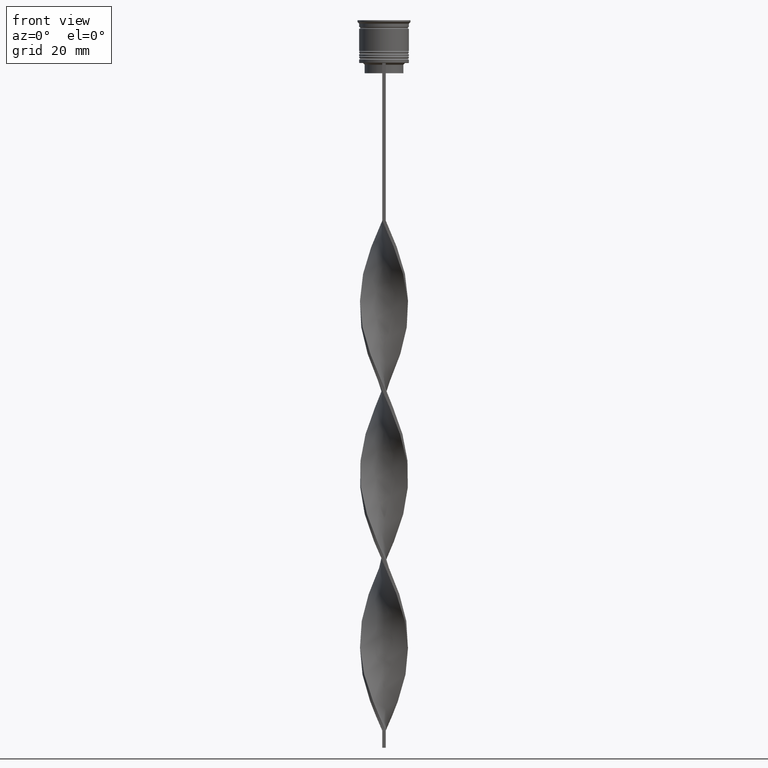
[diagram: clean part render]
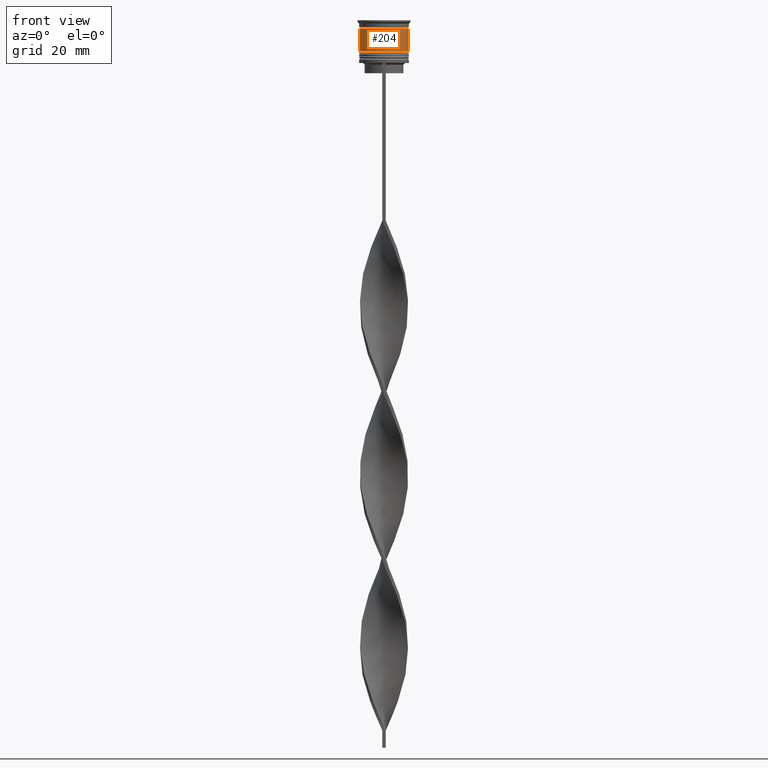
[diagram: same view with one face highlighted and labeled with its STEP entity id]
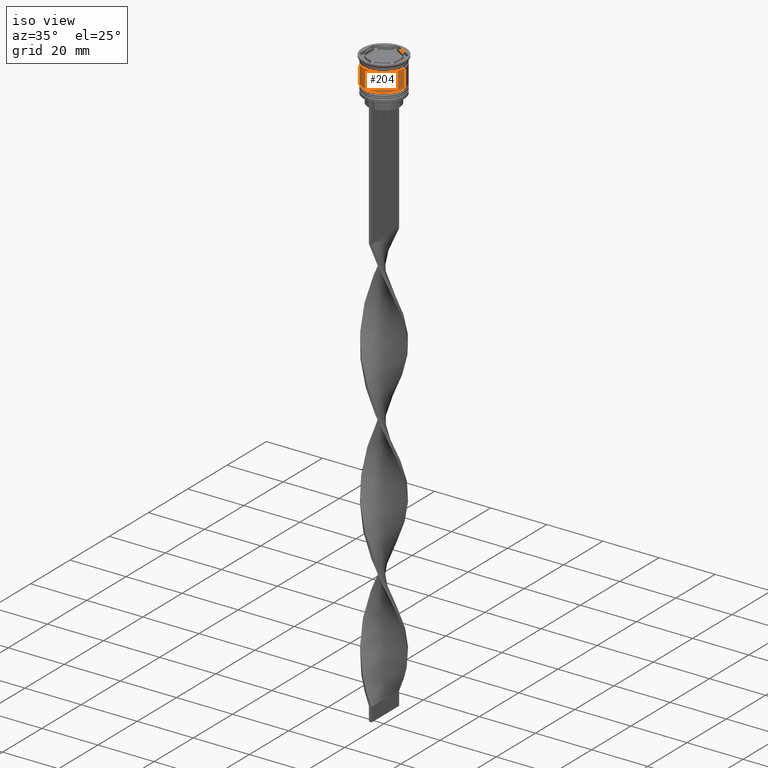
[diagram: same view with one face highlighted and labeled with its STEP entity id]
A machine part, front view. The second image highlights one B-rep face of the part: STEP entity #204.
A second angle (iso view) of the same face is appended — the face is thin or edge-on in the first view.
In plain terms, the highlighted cylindrical surface (edge-blend (fillet) strip) has radius 7.25 mm, axis along (-0, -0, 1).
Its self-contained STEP definition (entity closure, byte-faithful):
#79 = DIRECTION ( 'NONE',  ( -0.000000000000000000, -0.000000000000000000, 1.000000000000000000 ) ) ;
#102 = CYLINDRICAL_SURFACE ( 'NONE', #1102, 7.249999999999999112 ) ;
#118 = CARTESIAN_POINT ( 'NONE',  ( 0.000000000000000000, 0.000000000000000000, 0.000000000000000000 ) ) ;
#143 = EDGE_LOOP ( 'NONE', ( #1091, #1151, #2966, #2779 ) ) ;
#154 = DIRECTION ( 'NONE',  ( 1.000000000000000000, 0.000000000000000000, 0.000000000000000000 ) ) ;
#166 = CARTESIAN_POINT ( 'NONE',  ( -7.250000000000000888, 8.878689293818312046E-16, -9.000000000000001776 ) ) ;
#204 = ADVANCED_FACE ( 'NONE', ( #1874 ), #102, .T. ) ;
#323 = CARTESIAN_POINT ( 'NONE',  ( -7.249999999999999112, 8.878689293818310074E-16, 0.000000000000000000 ) ) ;
#377 = CIRCLE ( 'NONE', #2550, 7.250000000000000888 ) ;
#425 = DIRECTION ( 'NONE',  ( 1.000000000000000000, 0.000000000000000000, 0.000000000000000000 ) ) ;
#456 = CARTESIAN_POINT ( 'NONE',  ( 7.250000000000000888, 0.000000000000000000, -9.000000000000001776 ) ) ;
#844 = DIRECTION ( 'NONE',  ( -0.000000000000000000, -0.000000000000000000, 1.000000000000000000 ) ) ;
#1009 = DIRECTION ( 'NONE',  ( -0.000000000000000000, -0.000000000000000000, 1.000000000000000000 ) ) ;
#1091 = ORIENTED_EDGE ( 'NONE', *, *, #1218, .F. ) ;
#1102 = AXIS2_PLACEMENT_3D ( 'NONE', #118, #2806, #154 ) ;
#1151 = ORIENTED_EDGE ( 'NONE', *, *, #3160, .T. ) ;
#1152 = CARTESIAN_POINT ( 'NONE',  ( 0.000000000000000000, 0.000000000000000000, -9.000000000000001776 ) ) ;
#1218 = EDGE_CURVE ( 'NONE', #1468, #2178, #1528, .T. ) ;
#1275 = CARTESIAN_POINT ( 'NONE',  ( 0.000000000000000000, 0.000000000000000000, -2.500000000000000444 ) ) ;
#1439 = EDGE_CURVE ( 'NONE', #2178, #1452, #1714, .T. ) ;
#1452 = VERTEX_POINT ( 'NONE', #3671 ) ;
#1468 = VERTEX_POINT ( 'NONE', #166 ) ;
#1528 = LINE ( 'NONE', #323, #2534 ) ;
#1544 = VECTOR ( 'NONE', #79, 1000.000000000000000 ) ;
#1714 = CIRCLE ( 'NONE', #2040, 7.249999999999997335 ) ;
#1874 = FACE_OUTER_BOUND ( 'NONE', #143, .T. ) ;
#2040 = AXIS2_PLACEMENT_3D ( 'NONE', #1275, #1009, #425 ) ;
#2044 = DIRECTION ( 'NONE',  ( -0.000000000000000000, -0.000000000000000000, 1.000000000000000000 ) ) ;
#2178 = VERTEX_POINT ( 'NONE', #3114 ) ;
#2344 = DIRECTION ( 'NONE',  ( 1.000000000000000000, 0.000000000000000000, 0.000000000000000000 ) ) ;
#2460 = CARTESIAN_POINT ( 'NONE',  ( 7.249999999999999112, 0.000000000000000000, 0.000000000000000000 ) ) ;
#2534 = VECTOR ( 'NONE', #2044, 1000.000000000000000 ) ;
#2550 = AXIS2_PLACEMENT_3D ( 'NONE', #1152, #844, #2344 ) ;
#2571 = EDGE_CURVE ( 'NONE', #2933, #1452, #2766, .T. ) ;
#2766 = LINE ( 'NONE', #2460, #1544 ) ;
#2779 = ORIENTED_EDGE ( 'NONE', *, *, #1439, .F. ) ;
#2806 = DIRECTION ( 'NONE',  ( -0.000000000000000000, -0.000000000000000000, 1.000000000000000000 ) ) ;
#2933 = VERTEX_POINT ( 'NONE', #456 ) ;
#2966 = ORIENTED_EDGE ( 'NONE', *, *, #2571, .T. ) ;
#3114 = CARTESIAN_POINT ( 'NONE',  ( -7.249999999999997335, 8.878689293818308102E-16, -2.500000000000000444 ) ) ;
#3160 = EDGE_CURVE ( 'NONE', #1468, #2933, #377, .T. ) ;
#3671 = CARTESIAN_POINT ( 'NONE',  ( 7.249999999999997335, 0.000000000000000000, -2.500000000000000444 ) ) ;